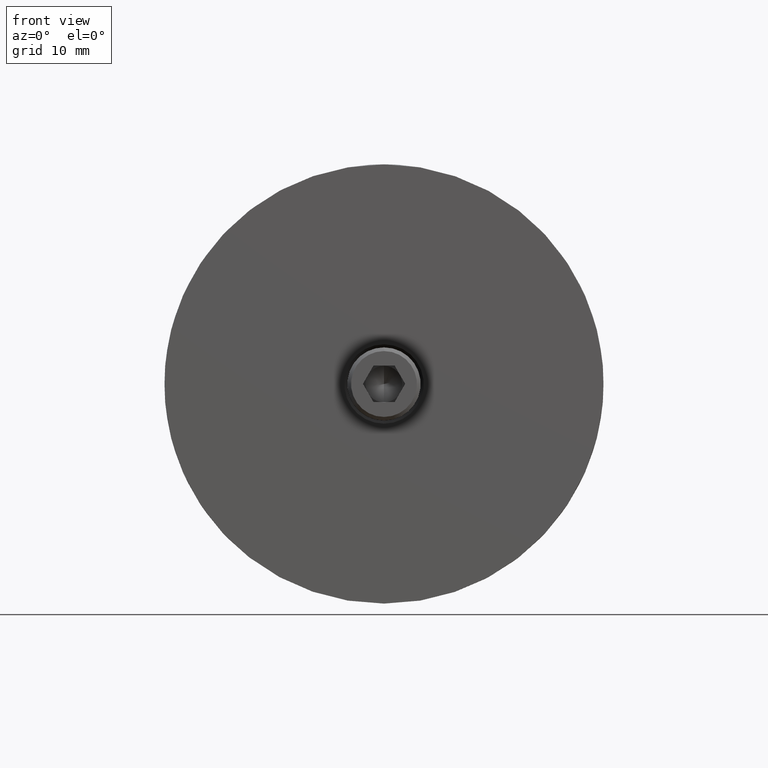
[diagram: clean part render]
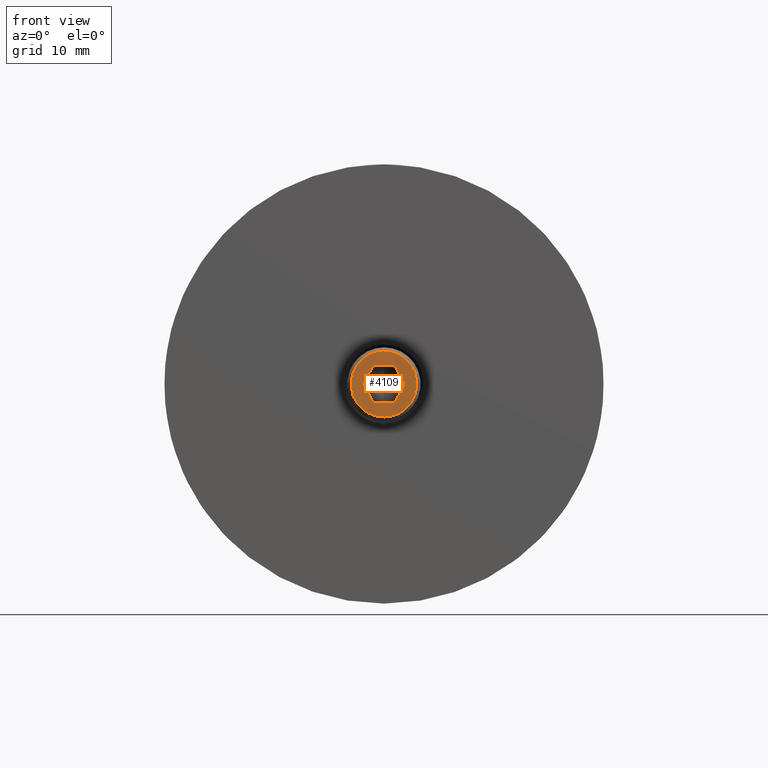
[diagram: same view with one face highlighted and labeled with its STEP entity id]
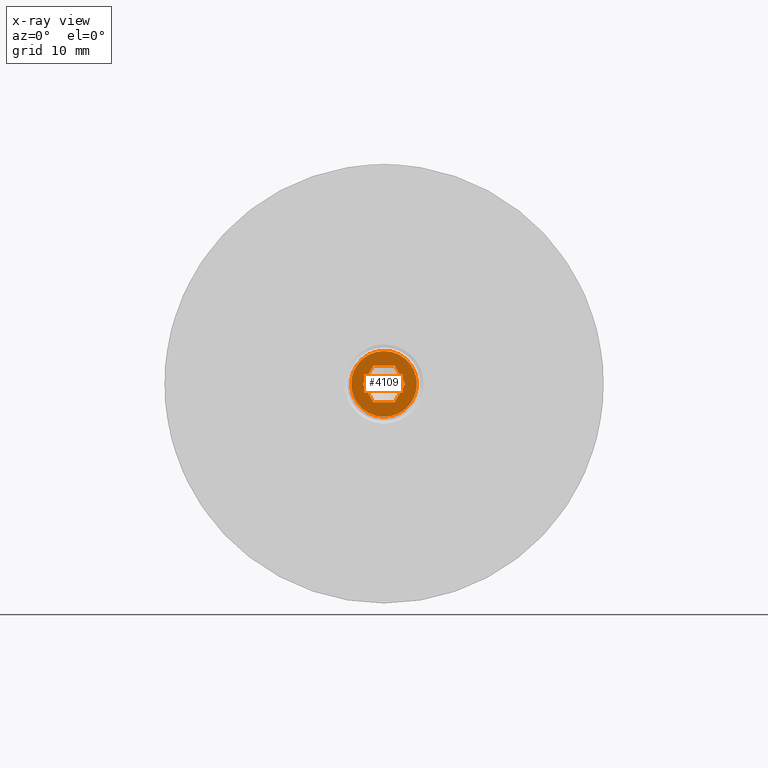
[diagram: x-ray of the same camera — body ghosted, the highlighted face saturated]
A machine part, front view. The second image highlights one B-rep face of the part: STEP entity #4109.
The next image is the same camera in x-ray: the body ghosted, the highlighted face saturated — about 0% of this face is hidden behind the body in this view.
In plain terms, the highlighted planar face has unit normal (0, -1, -0).
Its self-contained STEP definition (entity closure, byte-faithful):
#158 = DIRECTION ( 'NONE',  ( 0.000000000000000000, -1.000000000000000000, 0.000000000000000000 ) ) ;
#206 = VERTEX_POINT ( 'NONE', #1573 ) ;
#542 = ORIENTED_EDGE ( 'NONE', *, *, #3446, .F. ) ;
#750 = VECTOR ( 'NONE', #158, 1000.000000000000000 ) ;
#853 = CARTESIAN_POINT ( 'NONE',  ( 60.00000000000000000, 1.732050807568876971, -3.000000000000000000 ) ) ;
#857 = EDGE_LOOP ( 'NONE', ( #3399, #4885, #542, #1456, #11474, #9303 ) ) ;
#953 = LINE ( 'NONE', #5573, #11893 ) ;
#1071 = AXIS2_PLACEMENT_3D ( 'NONE', #1270, #12485, #4838 ) ;
#1122 = DIRECTION ( 'NONE',  ( 0.000000000000000000, 1.000000000000000000, -1.251928832280965695E-16 ) ) ;
#1193 = LINE ( 'NONE', #853, #8688 ) ;
#1270 = CARTESIAN_POINT ( 'NONE',  ( 60.00000000000000000, 0.000000000000000000, 0.000000000000000000 ) ) ;
#1456 = ORIENTED_EDGE ( 'NONE', *, *, #4854, .F. ) ;
#1545 = EDGE_CURVE ( 'NONE', #7385, #6577, #1782, .T. ) ;
#1573 = CARTESIAN_POINT ( 'NONE',  ( 60.00000000000000000, 1.732050807568876971, -3.000000000000000000 ) ) ;
#1740 = LINE ( 'NONE', #10491, #8882 ) ;
#1782 = CIRCLE ( 'NONE', #2837, 5.399999999999996803 ) ;
#1964 = LINE ( 'NONE', #14143, #5585 ) ;
#2170 = DIRECTION ( 'NONE',  ( 0.000000000000000000, 0.000000000000000000, -1.000000000000000000 ) ) ;
#2644 = VERTEX_POINT ( 'NONE', #10419 ) ;
#2837 = AXIS2_PLACEMENT_3D ( 'NONE', #5614, #6690, #2170 ) ;
#3330 = CARTESIAN_POINT ( 'NONE',  ( 60.00000000000000000, 1.732050807568877415, 3.000000000000000000 ) ) ;
#3399 = ORIENTED_EDGE ( 'NONE', *, *, #3631, .F. ) ;
#3446 = EDGE_CURVE ( 'NONE', #8825, #5686, #7500, .T. ) ;
#3574 = CARTESIAN_POINT ( 'NONE',  ( 60.00000000000000000, 1.732050807568877415, 3.000000000000000000 ) ) ;
#3631 = EDGE_CURVE ( 'NONE', #6616, #11440, #1740, .T. ) ;
#4109 = ADVANCED_FACE ( 'NONE', ( #11985, #4492 ), #12340, .T. ) ;
#4412 = CARTESIAN_POINT ( 'NONE',  ( 60.00000000000000000, 3.464101615137753942, -1.671326454249802086E-16 ) ) ;
#4492 = FACE_OUTER_BOUND ( 'NONE', #11442, .T. ) ;
#4716 = DIRECTION ( 'NONE',  ( 0.000000000000000000, 0.000000000000000000, -1.000000000000000000 ) ) ;
#4838 = DIRECTION ( 'NONE',  ( 0.000000000000000000, 0.000000000000000000, -1.000000000000000000 ) ) ;
#4854 = EDGE_CURVE ( 'NONE', #206, #8825, #1193, .T. ) ;
#4885 = ORIENTED_EDGE ( 'NONE', *, *, #6714, .F. ) ;
#5022 = VECTOR ( 'NONE', #11559, 1000.000000000000000 ) ;
#5573 = CARTESIAN_POINT ( 'NONE',  ( 60.00000000000000000, -1.732050807568878525, -2.999999999999999556 ) ) ;
#5585 = VECTOR ( 'NONE', #9750, 1000.000000000000114 ) ;
#5614 = CARTESIAN_POINT ( 'NONE',  ( 60.00000000000000000, 0.000000000000000000, 0.000000000000000000 ) ) ;
#5686 = VERTEX_POINT ( 'NONE', #3330 ) ;
#5706 = EDGE_CURVE ( 'NONE', #6577, #7385, #6032, .T. ) ;
#6032 = CIRCLE ( 'NONE', #10888, 5.399999999999996803 ) ;
#6577 = VERTEX_POINT ( 'NONE', #12188 ) ;
#6616 = VERTEX_POINT ( 'NONE', #7685 ) ;
#6690 = DIRECTION ( 'NONE',  ( 1.000000000000000000, 0.000000000000000000, 0.000000000000000000 ) ) ;
#6714 = EDGE_CURVE ( 'NONE', #5686, #6616, #12215, .T. ) ;
#7385 = VERTEX_POINT ( 'NONE', #13755 ) ;
#7500 = LINE ( 'NONE', #8388, #5022 ) ;
#7685 = CARTESIAN_POINT ( 'NONE',  ( 60.00000000000000000, -1.732050807568878303, 3.000000000000000000 ) ) ;
#8388 = CARTESIAN_POINT ( 'NONE',  ( 60.00000000000000000, 3.464101615137753942, -1.671326454249802086E-16 ) ) ;
#8688 = VECTOR ( 'NONE', #14296, 1000.000000000000000 ) ;
#8800 = EDGE_CURVE ( 'NONE', #2644, #206, #953, .T. ) ;
#8825 = VERTEX_POINT ( 'NONE', #4412 ) ;
#8882 = VECTOR ( 'NONE', #13899, 1000.000000000000114 ) ;
#9303 = ORIENTED_EDGE ( 'NONE', *, *, #9812, .F. ) ;
#9750 = DIRECTION ( 'NONE',  ( 0.000000000000000000, 0.4999999999999997224, -0.8660254037844387076 ) ) ;
#9812 = EDGE_CURVE ( 'NONE', #11440, #2644, #1964, .T. ) ;
#10179 = CARTESIAN_POINT ( 'NONE',  ( 60.00000000000000000, 0.000000000000000000, 0.000000000000000000 ) ) ;
#10419 = CARTESIAN_POINT ( 'NONE',  ( 60.00000000000000000, -1.732050807568878525, -2.999999999999999556 ) ) ;
#10491 = CARTESIAN_POINT ( 'NONE',  ( 60.00000000000000000, -1.732050807568878303, 3.000000000000000000 ) ) ;
#10789 = CARTESIAN_POINT ( 'NONE',  ( 60.00000000000000000, -3.464101615137754830, 1.084202172485504434E-15 ) ) ;
#10888 = AXIS2_PLACEMENT_3D ( 'NONE', #10179, #12458, #4716 ) ;
#11440 = VERTEX_POINT ( 'NONE', #10789 ) ;
#11442 = EDGE_LOOP ( 'NONE', ( #12118, #12368 ) ) ;
#11474 = ORIENTED_EDGE ( 'NONE', *, *, #8800, .F. ) ;
#11559 = DIRECTION ( 'NONE',  ( 0.000000000000000000, -0.4999999999999998335, 0.8660254037844387076 ) ) ;
#11893 = VECTOR ( 'NONE', #1122, 1000.000000000000000 ) ;
#11985 = FACE_BOUND ( 'NONE', #857, .T. ) ;
#12118 = ORIENTED_EDGE ( 'NONE', *, *, #5706, .T. ) ;
#12188 = CARTESIAN_POINT ( 'NONE',  ( 60.00000000000000000, 0.000000000000000000, 5.399999999999996803 ) ) ;
#12215 = LINE ( 'NONE', #3574, #750 ) ;
#12340 = PLANE ( 'NONE',  #1071 ) ;
#12368 = ORIENTED_EDGE ( 'NONE', *, *, #1545, .T. ) ;
#12458 = DIRECTION ( 'NONE',  ( 1.000000000000000000, 0.000000000000000000, 0.000000000000000000 ) ) ;
#12485 = DIRECTION ( 'NONE',  ( 1.000000000000000000, 0.000000000000000000, 0.000000000000000000 ) ) ;
#13755 = CARTESIAN_POINT ( 'NONE',  ( 60.00000000000000000, 6.980486755139912122E-16, -5.399999999999996803 ) ) ;
#13899 = DIRECTION ( 'NONE',  ( 0.000000000000000000, -0.5000000000000001110, -0.8660254037844385966 ) ) ;
#14143 = CARTESIAN_POINT ( 'NONE',  ( 60.00000000000000000, -3.464101615137755275, 1.285955637609351792E-15 ) ) ;
#14296 = DIRECTION ( 'NONE',  ( 0.000000000000000000, 0.4999999999999999445, 0.8660254037844387076 ) ) ;